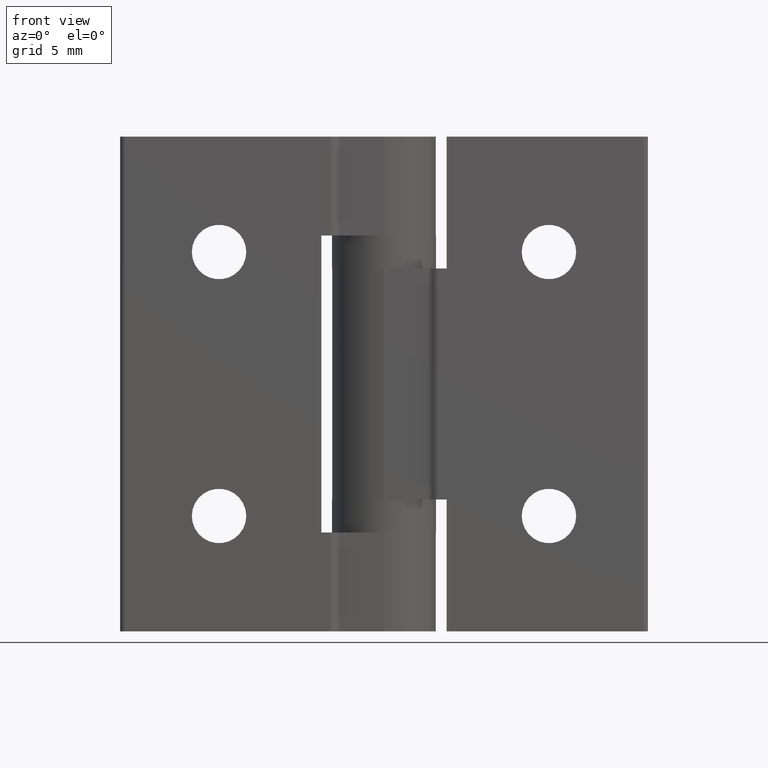
[diagram: clean part render]
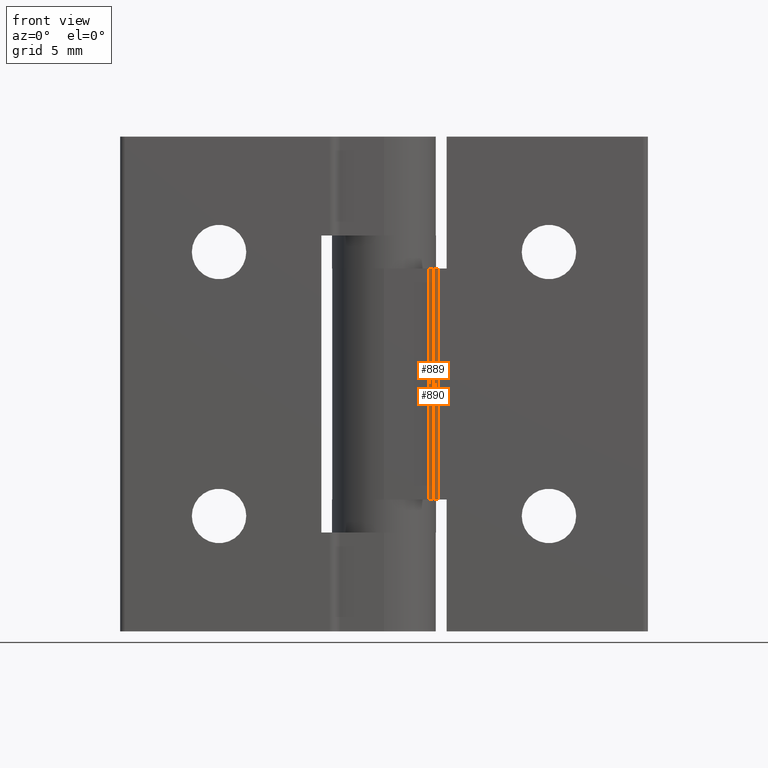
[diagram: same view with one multi-face feature highlighted, each face labeled with its STEP entity id]
A machine part, front view. The highlighted faces form ONE feature: a constant-radius fillet chain: 2 tangent blend faces with common blend radius 0.5 mm. The faces share edges in the B-rep.
Their STEP definitions:
[1] entity #889 (Cylinder):
#147=FACE_OUTER_BOUND('',#224,.T.);
#224=EDGE_LOOP('',(#790,#791,#792,#793));
#293=LINE('',#1525,#354);
#295=LINE('',#1528,#356);
#354=VECTOR('',#1255,14.);
#356=VECTOR('',#1259,14.);
#400=CIRCLE('',#984,0.5);
#404=CIRCLE('',#991,0.5);
#478=VERTEX_POINT('',#1495);
#479=VERTEX_POINT('',#1497);
#485=VERTEX_POINT('',#1515);
#486=VERTEX_POINT('',#1517);
#581=EDGE_CURVE('',#479,#478,#400,.T.);
#591=EDGE_CURVE('',#486,#485,#404,.T.);
#595=EDGE_CURVE('',#485,#479,#293,.T.);
#597=EDGE_CURVE('',#486,#478,#295,.T.);
#790=ORIENTED_EDGE('',*,*,#581,.T.);
#791=ORIENTED_EDGE('',*,*,#597,.F.);
#792=ORIENTED_EDGE('',*,*,#591,.T.);
#793=ORIENTED_EDGE('',*,*,#595,.T.);
#842=CYLINDRICAL_SURFACE('',#995,0.5);
#889=ADVANCED_FACE('',(#147),#842,.F.);
#984=AXIS2_PLACEMENT_3D('',#1498,#1226,#1227);
#991=AXIS2_PLACEMENT_3D('',#1518,#1246,#1247);
#995=AXIS2_PLACEMENT_3D('',#1527,#1257,#1258);
#1226=DIRECTION('center_axis',(0.,0.,-1.));
#1227=DIRECTION('ref_axis',(0.800000000000002,0.599999999999997,0.));
#1246=DIRECTION('center_axis',(1.34847054058434E-16,0.,1.));
#1247=DIRECTION('ref_axis',(0.800000000000002,0.599999999999997,0.));
#1255=DIRECTION('',(0.,0.,-1.));
#1257=DIRECTION('center_axis',(0.,0.,1.));
#1258=DIRECTION('ref_axis',(0.800000000000002,0.599999999999997,0.));
#1259=DIRECTION('',(0.,0.,-1.));
#1495=CARTESIAN_POINT('',(2.98220700148449,-3.25,-22.));
#1497=CARTESIAN_POINT('',(2.68220700148449,-3.15,-22.));
#1498=CARTESIAN_POINT('Origin',(2.68220700148449,-3.65,-22.));
#1515=CARTESIAN_POINT('',(2.68220700148449,-3.15,-8.));
#1517=CARTESIAN_POINT('',(2.98220700148449,-3.25,-8.));
#1518=CARTESIAN_POINT('Origin',(2.68220700148449,-3.65,-8.));
#1525=CARTESIAN_POINT('',(2.68220700148449,-3.15,0.));
#1527=CARTESIAN_POINT('Origin',(2.68220700148449,-3.65,0.));
#1528=CARTESIAN_POINT('',(2.98220700148449,-3.25,0.));
[2] entity #890 (Cylinder):
#148=FACE_OUTER_BOUND('',#225,.T.);
#225=EDGE_LOOP('',(#794,#795,#796,#797));
#295=LINE('',#1528,#356);
#296=LINE('',#1530,#357);
#356=VECTOR('',#1259,14.);
#357=VECTOR('',#1262,14.);
#399=CIRCLE('',#983,0.5);
#405=CIRCLE('',#992,0.5);
#477=VERTEX_POINT('',#1493);
#478=VERTEX_POINT('',#1495);
#486=VERTEX_POINT('',#1517);
#487=VERTEX_POINT('',#1519);
#580=EDGE_CURVE('',#478,#477,#399,.T.);
#592=EDGE_CURVE('',#487,#486,#405,.T.);
#597=EDGE_CURVE('',#486,#478,#295,.T.);
#598=EDGE_CURVE('',#477,#487,#296,.T.);
#794=ORIENTED_EDGE('',*,*,#580,.T.);
#795=ORIENTED_EDGE('',*,*,#598,.T.);
#796=ORIENTED_EDGE('',*,*,#592,.T.);
#797=ORIENTED_EDGE('',*,*,#597,.T.);
#843=CYLINDRICAL_SURFACE('',#996,0.5);
#890=ADVANCED_FACE('',(#148),#843,.T.);
#983=AXIS2_PLACEMENT_3D('',#1496,#1224,#1225);
#992=AXIS2_PLACEMENT_3D('',#1520,#1248,#1249);
#996=AXIS2_PLACEMENT_3D('',#1529,#1260,#1261);
#1224=DIRECTION('center_axis',(0.,0.,1.));
#1225=DIRECTION('ref_axis',(-0.316227766016839,-0.948683298050513,0.));
#1248=DIRECTION('center_axis',(-1.34847054058434E-16,0.,-1.));
#1249=DIRECTION('ref_axis',(-0.316227766016839,-0.948683298050513,0.));
#1259=DIRECTION('',(0.,0.,-1.));
#1260=DIRECTION('center_axis',(0.,0.,-1.));
#1261=DIRECTION('ref_axis',(-0.316227766016839,-0.948683298050513,0.));
#1262=DIRECTION('',(0.,0.,1.));
#1493=CARTESIAN_POINT('',(3.28220700148449,-3.35,-22.));
#1495=CARTESIAN_POINT('',(2.98220700148449,-3.25,-22.));
#1496=CARTESIAN_POINT('Origin',(3.28220700148449,-2.85,-22.));
#1517=CARTESIAN_POINT('',(2.98220700148449,-3.25,-8.));
#1519=CARTESIAN_POINT('',(3.28220700148449,-3.35,-8.));
#1520=CARTESIAN_POINT('Origin',(3.28220700148449,-2.85,-8.));
#1528=CARTESIAN_POINT('',(2.98220700148449,-3.25,0.));
#1529=CARTESIAN_POINT('Origin',(3.28220700148449,-2.85,0.));
#1530=CARTESIAN_POINT('',(3.28220700148449,-3.35,0.));